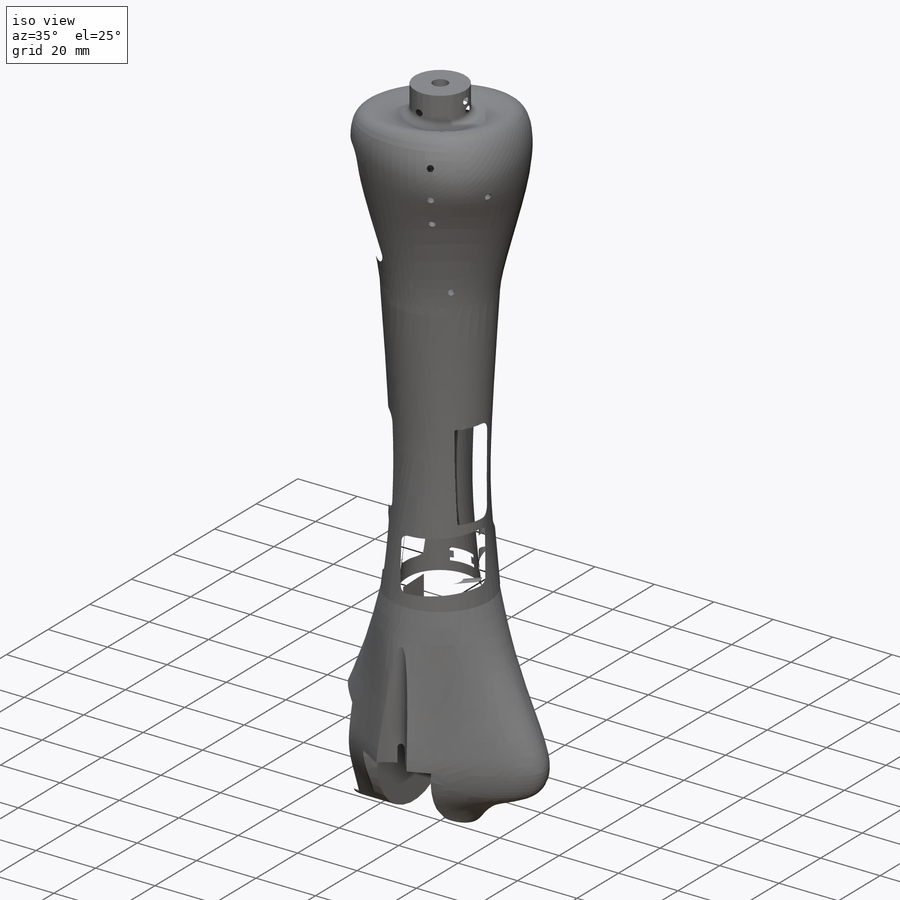
[diagram: iso view]
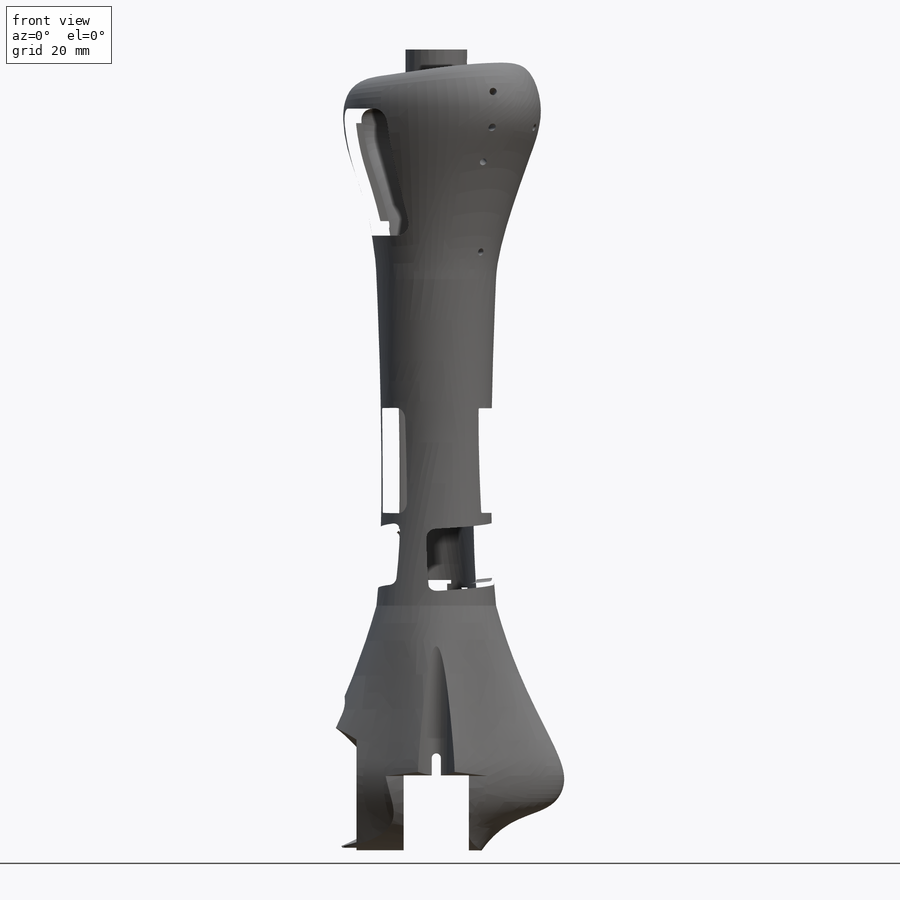
[diagram: front view]
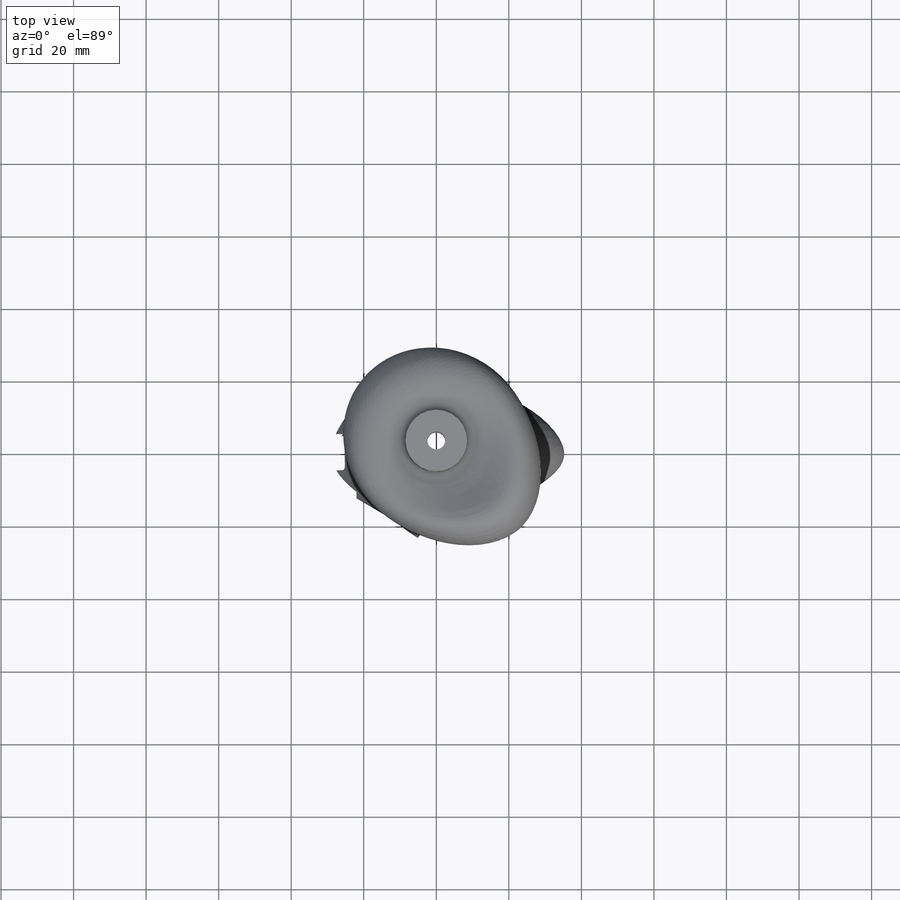
[diagram: top view]
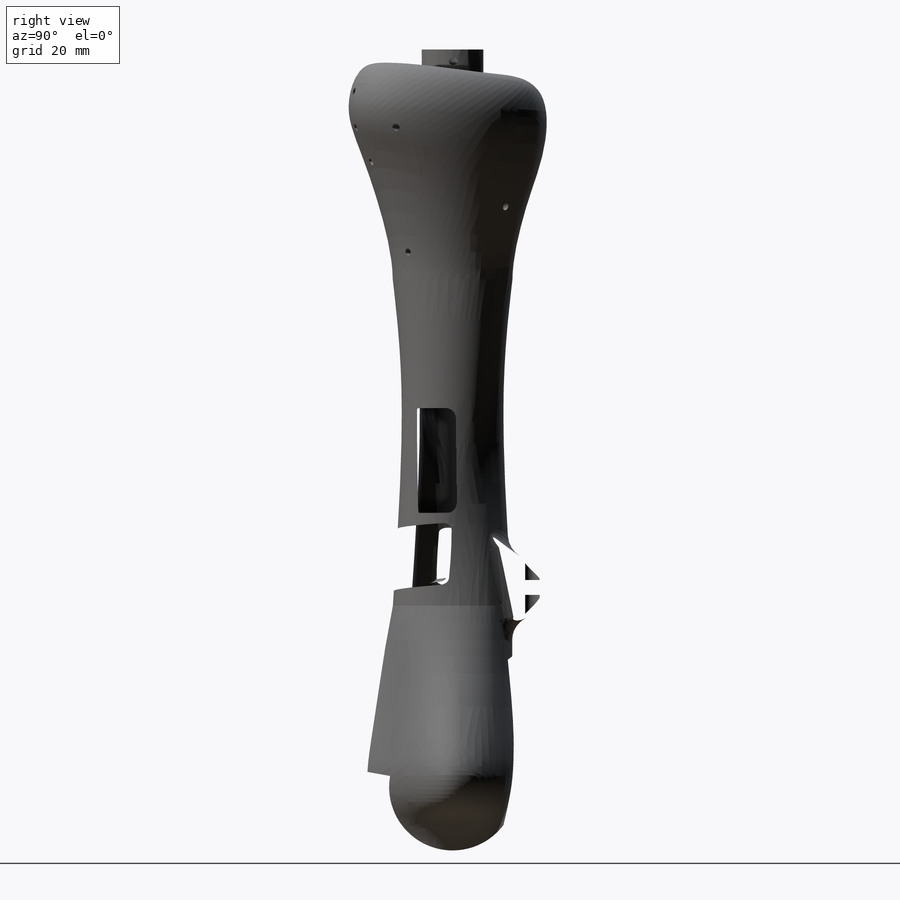
[diagram: right view]
SOLIDWORKS PART (.sldprt)
format: sldprt  version: not decoded by parser v0  size: 8,927,232 bytes
history: native  units: mm
features: sketch x44, cut_extrude x22, fillet x21, plane x16, cut_revolve x6, extrude x5, surface_op x4, hole x3, delete_body x2, pattern_circular x2, material x1, mirror x1, move_body x1 + 3 further entries (+18 scaffold rows collapsed; 4 parser-record rows omitted)
feature tree (153):
  scaffold x18  (default folders/planes/origin — collapsed)
  material  "Material <nicht festgelegt>"
  plane  "Vorne"
  plane  "Oben"
  plane  "Rechts"
  "p-vorlage-skelett-design-v02"
  parser-record x4  (decoder bookkeeping rows leaked as tree rows — omitted from the tree; the rows remain in map.json)
  delete_body  "Körper-Löschen1"
  delete_body  "Körper-Löschen2"
  fillet  "Verrundung1"  Radius=2mm
  sketch  "Skizze76"  dims[D1=33.0mm D2=25.0mm D3=50.0mm]
  surface_op  "Oberfläche-Linear austragen1"
  surface_op  "Oberfläche-Trimmen2"
  sketch  "Skizze68"  dims[c1.D1=18.5mm c1.D2=9.25mm c1.D3=80.0mm c1.D4=8.2mm c1.D5=13.0mm c1.D6=30.75mm c2.D3=40.0mm c2.D6=20.0mm]
  cut_revolve  "Schnitt-Rotation1"  Angle=360deg
  sketch  "Skizze69"  dims[c1.D1=35.0mm c1.D2=~5.132153mm c2.D2=170.0deg c2.D3=80.0mm c2.D4=20.0mm c2.D5=50.0mm]
  cut_extrude  "Schnitt-Linear austragen1"  [1 undecoded]
  sketch  "Skizze70"  dims[D1=37.0mm D2=4.0mm D3=42.0mm D4=19.0mm]
  cut_extrude  "Schnitt-Linear austragen2"  Depth=18mm
  plane  "Ebene1"
  plane  "Ebene2"  Offset=22mm
  sketch  "Skizze72"  dims[c1.D3=34.0mm c1.D4=5.0mm c1.D1=10.0mm c1.D2=40.0mm c2.D4=~54.07152mm]
  cut_extrude  "Schnitt-Linear austragen4"  [1 undecoded]
  hole  "Ø4.9 (4.9) Durchmesser Bohrung1"  Diameter=4.9mm Depth=20mm
  sketch  "Skizze74"
  sketch  "Skizze73"  dims[hole-wizard template sketch: 46 standard entries collapsed; hole parameters kept: c15.Bohrerdurchmesser=4.9mm c15.Bohrungstiefe=20.0mm c15.D3=~14.816244mm c15.Spitzenwinkel=118.0deg]
  "Achse1"
  plane  "Ebene3"
  sketch  "Skizze75"  dims[c1.D1=~32.015442mm c1.D2=~19.827745mm c2.D1=9.0mm c2.D2=18.0mm c2.D3=35.0mm c2.D4=31.0mm]
  cut_extrude  "Schnitt-Linear austragen5"  [1 undecoded]
  sketch  "Skizze78"  dims[c1.D1=~223.636939mm c2.D1=60.0deg c2.D2=37.0mm c2.D3=25.0mm c2.D4=~223.636939mm c3.D4=88.0deg c3.D5=35.0mm c3.D6=38.0mm c3.D7=30.0mm c3.D8=50.0mm c3.D9=~6.766319mm c4.D9=60.0deg c4.D10=25.0mm c4.D11=15.9177mm c4.D12=~23.625295mm c5.D11=20.0mm c5.D12=~1.684099mm c6.D11=20.0mm c6.D12=~1.820427mm c7.D11=20.0mm c7.D12=~1.658992mm c8.D11=~19.855915mm c8.D12=~1.203675mm c9.D11=~19.662613mm c9.D12=~1.215837mm c10.D11=~16.135903mm c10.D12=~1.480006mm c11.D11=1.0mm c11.D12=22.0mm]
  cut_revolve  "Schnitt-Rotation2"  Angle=360deg
  cut_revolve  "Schnitt-Rotation3"  [1 undecoded]
  sketch  "Skizze78<4>"  dims[D1=360.0deg]
  cut_revolve  "Schnitt-Rotation4"  [1 undecoded]
  sketch  "Skizze78<5>"  dims[D1=360.0deg]
  fillet  "Verrundung2"  Radius=3mm
  plane  "Ebene5"
  sketch  "Skizze79"  dims[c1.D1=~2.012887mm c1.D2=~13.712791mm c2.D1=72.5mm c2.D2=1.0mm c2.D3=20.0mm c2.D4=10.0mm]
  cut_revolve  "Schnitt-Rotation5"  Angle=360deg
  plane  "Ebene6"
  sketch  "Skizze80"  dims[c1.D1=~1.697582mm c1.D2=~10.822085mm c2.D1=~46.800211mm c2.D2=~60.508185mm c3.D1=60.0mm c3.D2=1.0mm c3.D3=24.0mm c3.D4=15.0mm]
  cut_revolve  "Schnitt-Rotation6"  Angle=360deg
  mirror  "Spiegeln1"
  surface_op  "Oberfläche-Offset2"
  sketch  "Skizze81"  dims[c1.D1=4.0mm c1.D2=4.0mm c1.D3=25.0mm c1.D4=25.0mm c1.D5=55.0mm c1.D6=55.0mm c1.D7=9.0mm c1.D8=10.0mm c1.D9=10.0mm c1.D10=20.0mm c1.D11=6.0mm c1.D12=10.0mm c1.D13=~16.401219mm c2.D12=10.0mm c2.D13=20.0mm c2.D14=6.0mm]
  plane  "Ebene7"
  "Oberflächenschnitt2"
  plane  "Ebene8"
  surface_op  "Oberfläche-Offset3"
  plane  "Ebene9"  Offset=40mm
  sketch  "Skizze87"  dims[D1=11.0mm D2=22.0mm D3=33.0mm D4=35.0mm]
  cut_extrude  "Schnitt-Linear austragen8"  [1 undecoded]
  fillet  "Verrundung9"  Radius=4mm
  sketch  "Skizze82"  dims[c1.D1=3.0mm c1.D2=3.0mm c1.D3=35.0mm c1.D4=35.0mm c1.D5=~3.926283mm c2.D5=~150.457958deg c3.D5=~3.926283mm c4.D5=~150.457958deg c5.D5=3.0mm c5.D6=3.0mm c5.D7=13.0mm c5.D8=13.0mm c5.D9=10.0mm c5.D10=10.0mm]
  sketch  "Skizze83"  dims[D1=5.0mm D2=5.0mm D3=20.0mm D4=5.0mm D5=5.0mm D6=20.0mm]
  hole  "Begrenzung-Oberfläche2"  [1 undecoded]
  sketch  "Skizze82<3>"
  sketch  "Skizze83<3>"
  extrude  "Aufsatz-Linear austragen1"  [1 undecoded]
  sketch  "Skizze84"  dims[c1.D1=4.0mm c1.D2=4.0mm c2.D1=6.0mm c2.D2=6.0mm]
  cut_extrude  "Schnitt-Linear austragen6"  Depth=4mm
  fillet  "Verrundung3"  Radius=2mm
  fillet  "Verrundung7"  Radius=4mm
  fillet  "Verrundung8"  Radius=3mm
  sketch  "Skizze89"  dims[D2=5.0mm D3=15.0mm D4=28.0mm D1=22.0mm D5=12.0mm D6=12.0mm]
  extrude  "Aufsatz-Linear austragen2"  Depth=12mm
  sketch  "Skizze90"  dims[c1.D1=6.0mm c1.D2=17.0mm c1.D3=~149.285109mm c2.D3=30.0deg]
  cut_extrude  "Schnitt-Linear austragen10"  Depth=2.1mm
  sketch  "Skizze91"  dims[D1=8.2mm D2=17.0mm]
  cut_extrude  "Schnitt-Linear austragen11"  Depth=1mm
  sketch  "Skizze93"  dims[D1=0.0mm]
  cut_extrude  "Schnitt-Linear austragen13"  Depth=1mm
  fillet  "Verrundung10"  Radius=2mm
  fillet  "Verrundung11"  Radius=3mm
  fillet  "Verrundung12"  Radius=3mm
  sketch  "Skizze94"  dims[D3=4.0mm D1=9.0mm D2=9.0mm]
  cut_extrude  "Schnitt-Linear austragen14"  [1 undecoded]
  sketch  "Skizze97"  dims[c1.D1=50.0mm c1.D2=30.0mm c1.D3=2.0mm c1.D4=25.0mm c1.D5=2.0mm c2.D1=30.0mm]
  sketch  "Skizze95"  dims[D3=4.0mm D4=12.0mm D5=27.0mm D1=22.0mm D2=22.0mm D6=12.0mm D7=12.0mm]
  extrude  "Aufsatz-Linear austragen5"  [1 undecoded]
  fillet  "Verrundung14"  Radius=2mm
  fillet  "Verrundung15"  Radius=2mm
  sketch  "Skizze98"  dims[D1=6.0mm]
  cut_extrude  "Schnitt-Linear austragen15"  Depth=2.1mm
  sketch  "Skizze99"  dims[D1=8.2mm]
  cut_extrude  "Schnitt-Linear austragen16"  Depth=1mm
  sketch  "Skizze100"  dims[D1=0.0mm]
  cut_extrude  "Schnitt-Linear austragen17"  Depth=1mm
  fillet  "Verrundung16"  Radius=7mm
  sketch  "Skizze71"  dims[D1=12.0mm D2=6.0mm D3=18.5mm D4=25.5mm]
  cut_extrude  "Schnitt-Linear austragen3"  [1 undecoded]
  sketch  "Skizze88"  dims[D1=2.5mm D2=8.0mm]
  cut_extrude  "Schnitt-Linear austragen9"  [1 undecoded]
  plane  "Ebene10"
  plane  "Ebene11"
  sketch  "Skizze101"  dims[D1=2.0mm D2=5.0mm D3=23.0mm]
  cut_extrude  "Schnitt-Linear austragen18"  [1 undecoded]
  sketch  "Skizze103"  dims[D1=2.0mm D2=20.0mm D3=5.0mm]
  cut_extrude  "Schnitt-Linear austragen19"  [1 undecoded]
  plane  "Ebene12"
  plane  "Ebene13"  Offset=30mm
  sketch  "Skizze112"  dims[D1=33.0mm D2=7.0mm D3=7.0mm D4=24.0mm]
  sketch  "Skizze113"  dims[c1.D1=8.0mm c1.D2=15.0mm c1.D3=20.0mm c1.D4=7.0mm c2.D1=12.3mm]
  hole  "Begrenzung-Oberfläche3"  [1 undecoded]
  sketch  "Skizze105"  dims[c1.D1=~253.066489mm c2.D1=85.0deg c2.D2=40.0mm c2.D3=149.0mm c2.D4=15.0mm]
  cut_extrude  "Schnitt-Linear austragen20"  [1 undecoded]
  sketch  "Skizze105<2>"
  pattern_circular  "Kreismuster12"  Count=2 Angle=230deg
  sketch  "Skizze114"  dims[D1=0.0mm]
  cut_extrude  "Schnitt-Linear austragen21"  [1 undecoded]
  fillet  "Verrundung30"  Radius=1mm
  fillet  "Verrundung31"  Radius=0.5mm
  fillet  "Verrundung32"  Radius=1mm
  plane  "Ebene15"  Offset=117.6mm
  sketch  "Skizze111"  dims[c1.D1=22.5mm c1.D2=~77.762776mm c2.D2=~153.373642deg c2.D3=~77.762776mm c3.D3=153.4deg c3.D2=29.9mm c3.D4=14.0mm c3.D5=6.0mm c3.D6=26.0mm]
  extrude  "Aufsatz-Linear austragen7"  Depth=24.8mm
  fillet  "Verrundung25"  Radius=5mm
  fillet  "Verrundung26"  Radius=1mm
  fillet  "Verrundung27"  Radius=2mm
  fillet  "Verrundung28"  Radius=1mm
  sketch  "Skizze116"  dims[D1=3.5mm D2=3.5mm D6=7.2mm D3=13.0mm D4=5.9mm D5=23.0mm]
  cut_extrude  "Schnitt-Linear austragen22"  Depth=4.1mm
  sketch  "Skizze117"  dims[D1=3.2mm]
  cut_extrude  "Schnitt-Linear austragen23"  [1 undecoded]
  fillet  "Verrundung33"  Radius=1.5mm
  sketch  "Skizze119"  dims[D1=6.0mm]
  extrude  "Aufsatz-Linear austragen9"  Depth=2mm
  fillet  "Verrundung35"  Radius=0.5mm
  pattern_circular  "Kreismuster1"  Count=2 Angle=230deg
  sketch  "Skizze120"  dims[D1=2.46mm D2=5.5mm D3=19.0mm]
  cut_extrude  "Schnitt-Linear austragen24"  Depth=8mm
  move_body  "Körper-Verschieben/Kopieren1"
decode coverage: 81 of 111 modeling features carry decoded parameters; 3 rows unclassified (native names shown)
note: ~ marks probable driven/reference dimensions
note: 18 parameter values undecoded
summary: no parameter record found for 18 features
note: suppression state not decoded; provenance and decode notes live in map.json
